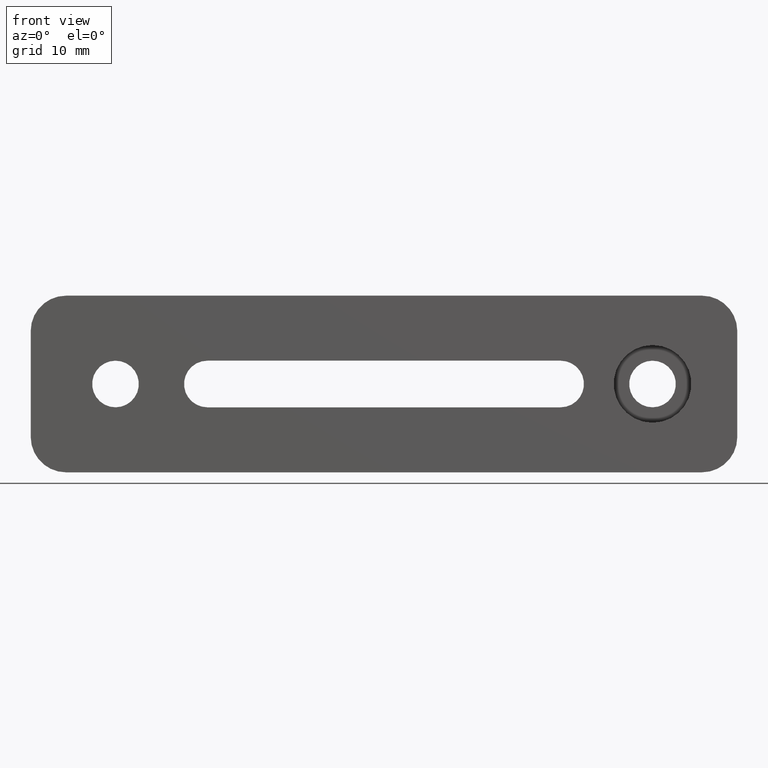
[diagram: clean part render]
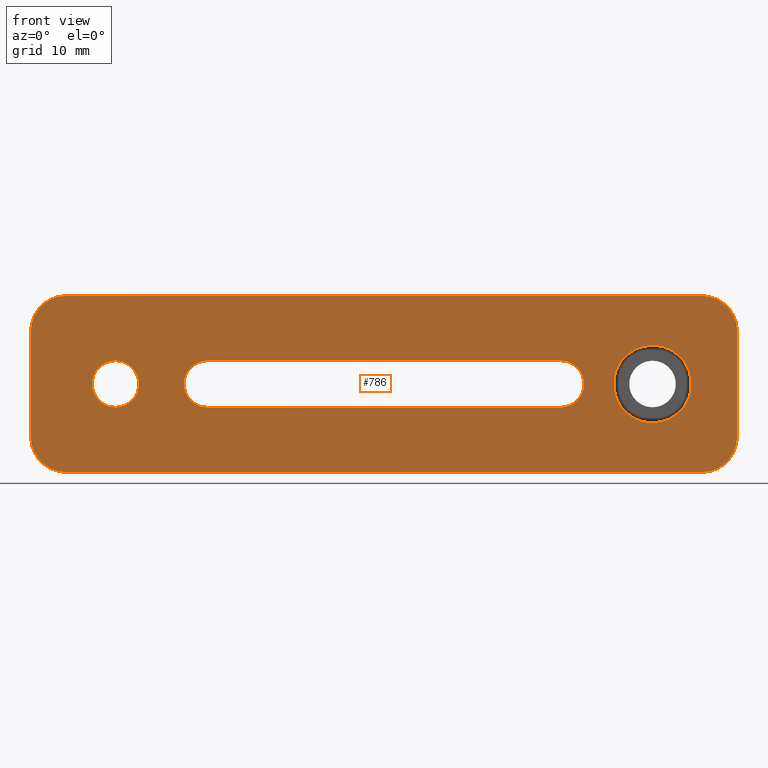
[diagram: same view with one face highlighted and labeled with its STEP entity id]
A machine part, front view. The second image highlights one B-rep face of the part: STEP entity #786.
In plain terms, the highlighted planar face has unit normal (0, 1, -0).
Its self-contained STEP definition (entity closure, byte-faithful):
#13 = DIRECTION ( 'NONE',  ( 0.0000000000000000000, 0.0000000000000000000, 1.000000000000000000 ) ) ;
#20 = CARTESIAN_POINT ( 'NONE',  ( 38.00000000000000000, -9.500000000000000000, -5.499999999999998200 ) ) ;
#23 = CARTESIAN_POINT ( 'NONE',  ( -25.00000000000000000, -9.500000000000000000, 6.027989040367472400E-015 ) ) ;
#36 = FACE_BOUND ( 'NONE', #385, .T. ) ;
#38 = AXIS2_PLACEMENT_3D ( 'NONE', #365, #875, #13 ) ;
#45 = DIRECTION ( 'NONE',  ( 1.000000000000000000, -0.0000000000000000000, 0.0000000000000000000 ) ) ;
#46 = CARTESIAN_POINT ( 'NONE',  ( 25.00000000000000000, -9.500000000000000000, -3.299999999999995800 ) ) ;
#54 = CIRCLE ( 'NONE', #141, 4.999999999999998200 ) ;
#62 = VERTEX_POINT ( 'NONE', #565 ) ;
#66 = CARTESIAN_POINT ( 'NONE',  ( 50.00000000000000700, -9.500000000000000000, 7.500000000000000900 ) ) ;
#78 = VERTEX_POINT ( 'NONE', #856 ) ;
#82 = CIRCLE ( 'NONE', #38, 3.299999999999997200 ) ;
#84 = DIRECTION ( 'NONE',  ( -1.000000000000000000, 0.0000000000000000000, 1.387778780781445700E-016 ) ) ;
#86 = CARTESIAN_POINT ( 'NONE',  ( -50.00000000000000000, -9.500000000000000000, 7.499999999999999100 ) ) ;
#108 = AXIS2_PLACEMENT_3D ( 'NONE', #930, #195, #854 ) ;
#112 = EDGE_CURVE ( 'NONE', #413, #62, #794, .T. ) ;
#114 = EDGE_CURVE ( 'NONE', #515, #837, #480, .T. ) ;
#116 = VERTEX_POINT ( 'NONE', #86 ) ;
#124 = AXIS2_PLACEMENT_3D ( 'NONE', #586, #804, #304 ) ;
#125 = ORIENTED_EDGE ( 'NONE', *, *, #702, .T. ) ;
#134 = CIRCLE ( 'NONE', #276, 5.499999999999998200 ) ;
#141 = AXIS2_PLACEMENT_3D ( 'NONE', #402, #375, #748 ) ;
#143 = DIRECTION ( 'NONE',  ( 0.0000000000000000000, 0.0000000000000000000, -1.000000000000000000 ) ) ;
#152 = EDGE_CURVE ( 'NONE', #78, #697, #269, .T. ) ;
#160 = EDGE_CURVE ( 'NONE', #697, #289, #457, .T. ) ;
#171 = EDGE_CURVE ( 'NONE', #116, #570, #54, .T. ) ;
#175 = EDGE_LOOP ( 'NONE', ( #379, #194, #773, #192 ) ) ;
#182 = ORIENTED_EDGE ( 'NONE', *, *, #356, .F. ) ;
#186 = AXIS2_PLACEMENT_3D ( 'NONE', #23, #596, #524 ) ;
#187 = DIRECTION ( 'NONE',  ( 0.0000000000000000000, 0.0000000000000000000, -1.000000000000000000 ) ) ;
#192 = ORIENTED_EDGE ( 'NONE', *, *, #339, .T. ) ;
#194 = ORIENTED_EDGE ( 'NONE', *, *, #152, .T. ) ;
#195 = DIRECTION ( 'NONE',  ( 0.0000000000000000000, 1.000000000000000000, -0.0000000000000000000 ) ) ;
#200 = EDGE_CURVE ( 'NONE', #514, #906, #82, .T. ) ;
#201 = AXIS2_PLACEMENT_3D ( 'NONE', #827, #287, #883 ) ;
#206 = CIRCLE ( 'NONE', #533, 5.000000000000003600 ) ;
#207 = CARTESIAN_POINT ( 'NONE',  ( 25.00000000000000000, -9.500000000000000000, 3.299999999999995800 ) ) ;
#216 = CARTESIAN_POINT ( 'NONE',  ( 50.00000000000000700, -9.500000000000000000, 0.0000000000000000000 ) ) ;
#219 = CARTESIAN_POINT ( 'NONE',  ( -49.99999999999999300, -9.500000000000000000, -7.499999999999999100 ) ) ;
#227 = FACE_BOUND ( 'NONE', #175, .T. ) ;
#242 = CARTESIAN_POINT ( 'NONE',  ( 38.00000000000000000, -9.500000000000000000, 0.0000000000000000000 ) ) ;
#262 = VECTOR ( 'NONE', #510, 1000.000000000000000 ) ;
#263 = DIRECTION ( 'NONE',  ( 0.0000000000000000000, 0.0000000000000000000, 1.000000000000000000 ) ) ;
#269 = LINE ( 'NONE', #575, #656 ) ;
#270 = FACE_BOUND ( 'NONE', #861, .T. ) ;
#275 = ORIENTED_EDGE ( 'NONE', *, *, #912, .F. ) ;
#276 = AXIS2_PLACEMENT_3D ( 'NONE', #293, #650, #143 ) ;
#280 = CARTESIAN_POINT ( 'NONE',  ( -38.00000000000000000, -9.500000000000000000, -3.299999999999997200 ) ) ;
#282 = LINE ( 'NONE', #848, #262 ) ;
#287 = DIRECTION ( 'NONE',  ( -0.0000000000000000000, 1.000000000000000000, -0.0000000000000000000 ) ) ;
#289 = VERTEX_POINT ( 'NONE', #46 ) ;
#293 = CARTESIAN_POINT ( 'NONE',  ( 38.00000000000000000, -9.500000000000000000, 0.0000000000000000000 ) ) ;
#294 = VECTOR ( 'NONE', #910, 1000.000000000000000 ) ;
#304 = DIRECTION ( 'NONE',  ( 0.0000000000000000000, 0.0000000000000000000, 1.000000000000000000 ) ) ;
#306 = VECTOR ( 'NONE', #84, 1000.000000000000000 ) ;
#334 = ORIENTED_EDGE ( 'NONE', *, *, #114, .T. ) ;
#339 = EDGE_CURVE ( 'NONE', #289, #818, #885, .T. ) ;
#351 = DIRECTION ( 'NONE',  ( -0.0000000000000000000, -1.000000000000000000, -0.0000000000000000000 ) ) ;
#356 = EDGE_CURVE ( 'NONE', #720, #877, #733, .T. ) ;
#365 = CARTESIAN_POINT ( 'NONE',  ( -38.00000000000000000, -9.500000000000000000, 0.0000000000000000000 ) ) ;
#375 = DIRECTION ( 'NONE',  ( 0.0000000000000000000, 1.000000000000000000, -0.0000000000000000000 ) ) ;
#377 = ORIENTED_EDGE ( 'NONE', *, *, #631, .F. ) ;
#379 = ORIENTED_EDGE ( 'NONE', *, *, #899, .T. ) ;
#385 = EDGE_LOOP ( 'NONE', ( #125, #407 ) ) ;
#392 = CARTESIAN_POINT ( 'NONE',  ( -45.00000000000000700, -9.500000000000000000, 12.50000000000000000 ) ) ;
#402 = CARTESIAN_POINT ( 'NONE',  ( -45.00000000000000700, -9.500000000000000000, 7.499999999999999100 ) ) ;
#403 = CARTESIAN_POINT ( 'NONE',  ( -45.00000000000000700, -9.500000000000000000, -12.49999999999999600 ) ) ;
#404 = ORIENTED_EDGE ( 'NONE', *, *, #112, .F. ) ;
#406 = VECTOR ( 'NONE', #829, 1000.000000000000000 ) ;
#407 = ORIENTED_EDGE ( 'NONE', *, *, #200, .T. ) ;
#409 = VECTOR ( 'NONE', #45, 1000.000000000000000 ) ;
#413 = VERTEX_POINT ( 'NONE', #66 ) ;
#447 = EDGE_CURVE ( 'NONE', #62, #837, #768, .T. ) ;
#457 = CIRCLE ( 'NONE', #779, 3.299999999999997200 ) ;
#460 = ORIENTED_EDGE ( 'NONE', *, *, #549, .T. ) ;
#480 = LINE ( 'NONE', #507, #294 ) ;
#495 = CARTESIAN_POINT ( 'NONE',  ( -25.00000000000000000, -9.500000000000000000, -3.299999999999988700 ) ) ;
#507 = CARTESIAN_POINT ( 'NONE',  ( 0.0000000000000000000, -9.500000000000000000, -12.49999999999999600 ) ) ;
#510 = DIRECTION ( 'NONE',  ( 4.625929269271486900E-016, 0.0000000000000000000, -1.000000000000000000 ) ) ;
#512 = CARTESIAN_POINT ( 'NONE',  ( 45.00000000000000700, -9.500000000000000000, -12.49999999999999600 ) ) ;
#514 = VERTEX_POINT ( 'NONE', #280 ) ;
#515 = VERTEX_POINT ( 'NONE', #403 ) ;
#518 = CARTESIAN_POINT ( 'NONE',  ( 0.0000000000000000000, -9.500000000000000000, 0.0000000000000000000 ) ) ;
#524 = DIRECTION ( 'NONE',  ( 0.0000000000000000000, 0.0000000000000000000, 1.000000000000000000 ) ) ;
#531 = CIRCLE ( 'NONE', #108, 4.999999999999993800 ) ;
#533 = AXIS2_PLACEMENT_3D ( 'NONE', #769, #777, #710 ) ;
#538 = VERTEX_POINT ( 'NONE', #923 ) ;
#549 = EDGE_CURVE ( 'NONE', #116, #924, #282, .T. ) ;
#565 = CARTESIAN_POINT ( 'NONE',  ( 50.00000000000000700, -9.500000000000000000, -7.499999999999999100 ) ) ;
#570 = VERTEX_POINT ( 'NONE', #392 ) ;
#575 = CARTESIAN_POINT ( 'NONE',  ( 25.00000000000000000, -9.500000000000000000, 3.299999999999995800 ) ) ;
#576 = CARTESIAN_POINT ( 'NONE',  ( 0.0000000000000000000, -9.500000000000000000, 12.50000000000000000 ) ) ;
#580 = AXIS2_PLACEMENT_3D ( 'NONE', #518, #618, #839 ) ;
#586 = CARTESIAN_POINT ( 'NONE',  ( 45.00000000000000700, -9.500000000000000000, -7.499999999999999100 ) ) ;
#596 = DIRECTION ( 'NONE',  ( -0.0000000000000000000, 1.000000000000000000, -0.0000000000000000000 ) ) ;
#606 = LINE ( 'NONE', #576, #409 ) ;
#618 = DIRECTION ( 'NONE',  ( 0.0000000000000000000, 1.000000000000000000, -0.0000000000000000000 ) ) ;
#631 = EDGE_CURVE ( 'NONE', #515, #924, #531, .T. ) ;
#650 = DIRECTION ( 'NONE',  ( -0.0000000000000000000, -1.000000000000000000, -0.0000000000000000000 ) ) ;
#656 = VECTOR ( 'NONE', #722, 1000.000000000000000 ) ;
#660 = ORIENTED_EDGE ( 'NONE', *, *, #755, .F. ) ;
#678 = CARTESIAN_POINT ( 'NONE',  ( 38.00000000000000000, -9.500000000000000000, 5.499999999999998200 ) ) ;
#697 = VERTEX_POINT ( 'NONE', #207 ) ;
#702 = EDGE_CURVE ( 'NONE', #906, #514, #898, .T. ) ;
#705 = EDGE_LOOP ( 'NONE', ( #460, #377, #334, #852, #404, #925, #660, #866 ) ) ;
#706 = CIRCLE ( 'NONE', #186, 3.299999999999997200 ) ;
#710 = DIRECTION ( 'NONE',  ( 0.0000000000000000000, 0.0000000000000000000, 1.000000000000000000 ) ) ;
#720 = VERTEX_POINT ( 'NONE', #20 ) ;
#722 = DIRECTION ( 'NONE',  ( 1.000000000000000000, -0.0000000000000000000, -1.387778780781445700E-016 ) ) ;
#733 = CIRCLE ( 'NONE', #767, 5.499999999999998200 ) ;
#740 = CARTESIAN_POINT ( 'NONE',  ( 25.00000000000000000, -9.500000000000000000, -9.524495536929381000E-017 ) ) ;
#748 = DIRECTION ( 'NONE',  ( 0.0000000000000000000, 0.0000000000000000000, 1.000000000000000000 ) ) ;
#755 = EDGE_CURVE ( 'NONE', #570, #538, #606, .T. ) ;
#767 = AXIS2_PLACEMENT_3D ( 'NONE', #242, #351, #187 ) ;
#768 = CIRCLE ( 'NONE', #124, 5.000000000000000900 ) ;
#769 = CARTESIAN_POINT ( 'NONE',  ( 45.00000000000000700, -9.500000000000000000, 7.500000000000000900 ) ) ;
#773 = ORIENTED_EDGE ( 'NONE', *, *, #160, .T. ) ;
#775 = FACE_OUTER_BOUND ( 'NONE', #705, .T. ) ;
#777 = DIRECTION ( 'NONE',  ( 0.0000000000000000000, 1.000000000000000000, -0.0000000000000000000 ) ) ;
#778 = CARTESIAN_POINT ( 'NONE',  ( -38.00000000000000000, -9.500000000000000000, 3.299999999999997200 ) ) ;
#779 = AXIS2_PLACEMENT_3D ( 'NONE', #740, #868, #263 ) ;
#786 = ADVANCED_FACE ( 'NONE', ( #270, #36, #227, #775 ), #911, .F. ) ;
#788 = EDGE_CURVE ( 'NONE', #538, #413, #206, .T. ) ;
#794 = LINE ( 'NONE', #216, #406 ) ;
#804 = DIRECTION ( 'NONE',  ( 0.0000000000000000000, 1.000000000000000000, -0.0000000000000000000 ) ) ;
#818 = VERTEX_POINT ( 'NONE', #495 ) ;
#827 = CARTESIAN_POINT ( 'NONE',  ( -38.00000000000000000, -9.500000000000000000, 0.0000000000000000000 ) ) ;
#829 = DIRECTION ( 'NONE',  ( 0.0000000000000000000, 0.0000000000000000000, -1.000000000000000000 ) ) ;
#837 = VERTEX_POINT ( 'NONE', #512 ) ;
#839 = DIRECTION ( 'NONE',  ( 0.0000000000000000000, 0.0000000000000000000, 1.000000000000000000 ) ) ;
#848 = CARTESIAN_POINT ( 'NONE',  ( -49.99999999999999300, -9.500000000000000000, -2.312964634635743200E-014 ) ) ;
#850 = CARTESIAN_POINT ( 'NONE',  ( 25.00000000000000000, -9.500000000000000000, -3.299999999999995800 ) ) ;
#852 = ORIENTED_EDGE ( 'NONE', *, *, #447, .F. ) ;
#854 = DIRECTION ( 'NONE',  ( 0.0000000000000000000, 0.0000000000000000000, 1.000000000000000000 ) ) ;
#856 = CARTESIAN_POINT ( 'NONE',  ( -25.00000000000000000, -9.500000000000000000, 3.300000000000001600 ) ) ;
#861 = EDGE_LOOP ( 'NONE', ( #182, #275 ) ) ;
#866 = ORIENTED_EDGE ( 'NONE', *, *, #171, .F. ) ;
#868 = DIRECTION ( 'NONE',  ( -0.0000000000000000000, 1.000000000000000000, -0.0000000000000000000 ) ) ;
#875 = DIRECTION ( 'NONE',  ( -0.0000000000000000000, 1.000000000000000000, -0.0000000000000000000 ) ) ;
#877 = VERTEX_POINT ( 'NONE', #678 ) ;
#883 = DIRECTION ( 'NONE',  ( 0.0000000000000000000, 0.0000000000000000000, 1.000000000000000000 ) ) ;
#885 = LINE ( 'NONE', #850, #306 ) ;
#898 = CIRCLE ( 'NONE', #201, 3.299999999999997200 ) ;
#899 = EDGE_CURVE ( 'NONE', #818, #78, #706, .T. ) ;
#906 = VERTEX_POINT ( 'NONE', #778 ) ;
#910 = DIRECTION ( 'NONE',  ( 1.000000000000000000, -0.0000000000000000000, 0.0000000000000000000 ) ) ;
#911 = PLANE ( 'NONE',  #580 ) ;
#912 = EDGE_CURVE ( 'NONE', #877, #720, #134, .T. ) ;
#923 = CARTESIAN_POINT ( 'NONE',  ( 45.00000000000001400, -9.500000000000000000, 12.50000000000000000 ) ) ;
#924 = VERTEX_POINT ( 'NONE', #219 ) ;
#925 = ORIENTED_EDGE ( 'NONE', *, *, #788, .F. ) ;
#930 = CARTESIAN_POINT ( 'NONE',  ( -45.00000000000000700, -9.500000000000000000, -7.499999999999999100 ) ) ;